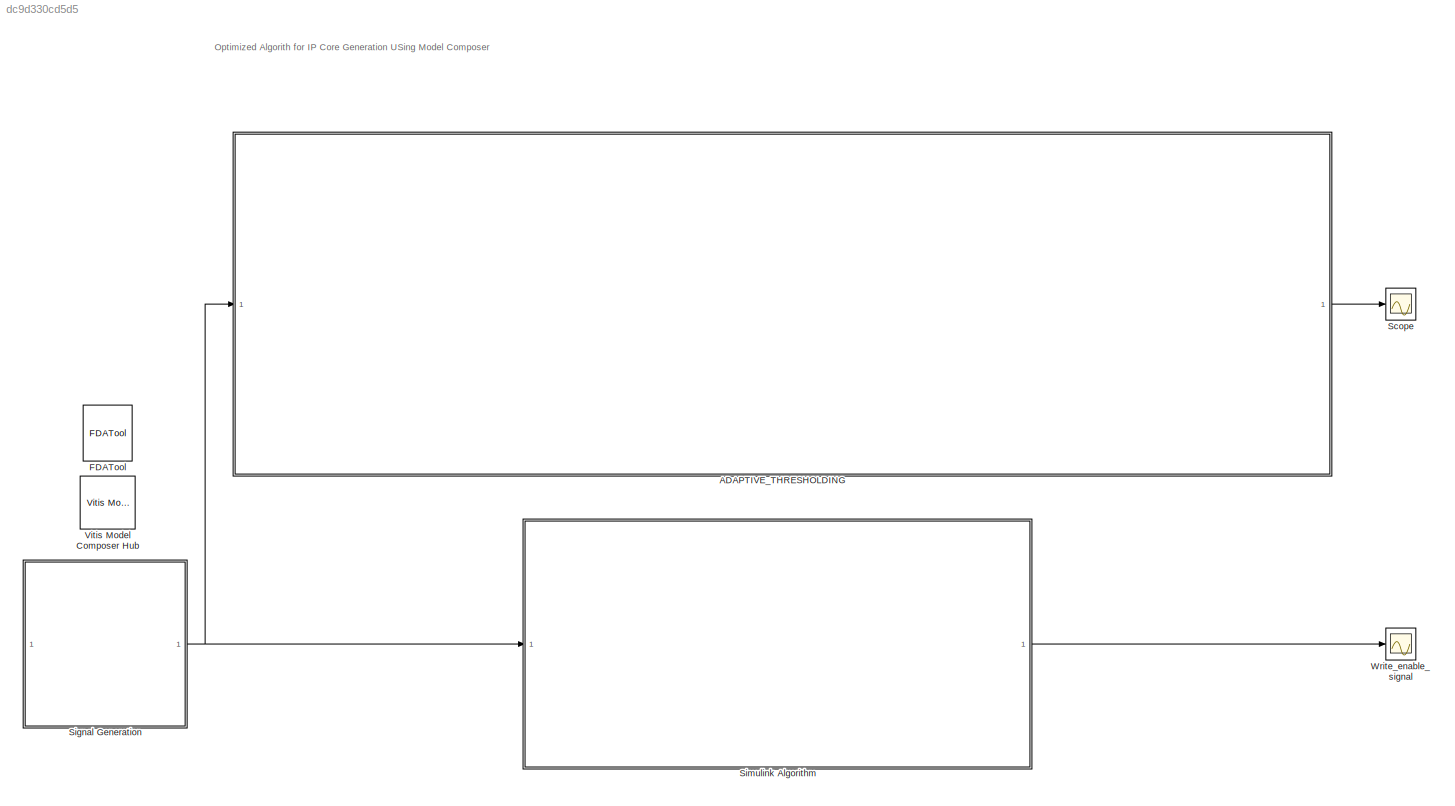
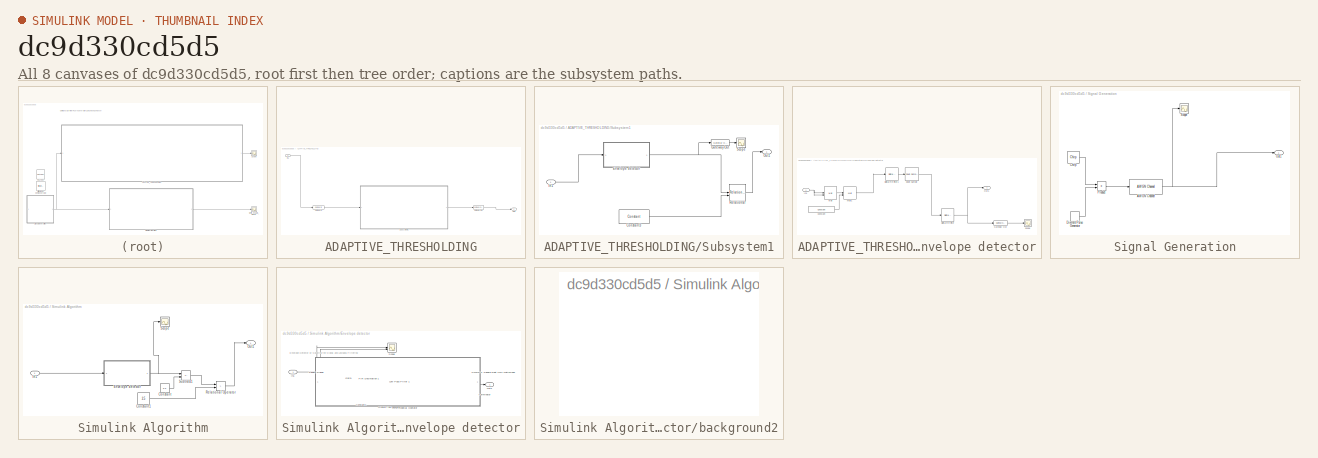
[diagram: thumbnail index - all 8 canvases of the model, root first then tree order]
MODEL slx_dc9d330cd5d5
KIND model
CONFIG AbsTol = auto
CONFIG EnableMultiTasking = off
CONFIG FixedStep = auto
CONFIG MaxStep = auto
CONFIG MinStep = auto
CONFIG RelTol = 1e-3
CONFIG SampleTimeConstraint = Unconstrained
CONFIG SolverName = VariableStepAuto
CONFIG StartTime = 0.0
CONFIG StopTime = 10.0
BLOCK [SubSystem] ADAPTIVE_THRESHOLDING
BLOCK [Reference] ADAPTIVE_THRESHOLDING/Gateway In  REF=hdlBasic/Gateway In
  SourceBlock = hdlBasic/Gateway In
  SourceType = Gateway In Block
BLOCK [Reference] ADAPTIVE_THRESHOLDING/Gateway Out  REF=hdlBasic/Gateway Out
  SourceBlock = hdlBasic/Gateway Out
  SourceType = Gateway Out Block
BLOCK [Inport] ADAPTIVE_THRESHOLDING/In1
BLOCK [Outport] ADAPTIVE_THRESHOLDING/Out1
BLOCK [SubSystem] ADAPTIVE_THRESHOLDING/Subsystem1
BLOCK [Reference] ADAPTIVE_THRESHOLDING/Subsystem1/Constant3  REF=hdlBasic/Constant
  SourceBlock = hdlBasic/Constant
  SourceType = Constant Block Block
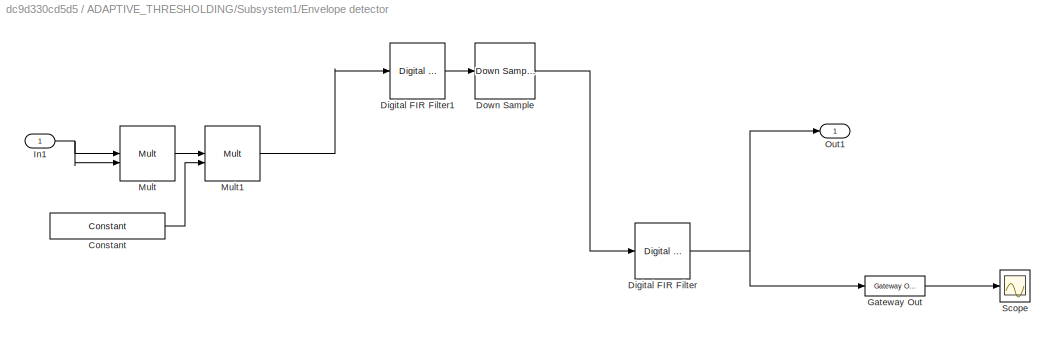
BLOCK [SubSystem] ADAPTIVE_THRESHOLDING/Subsystem1/Envelope detector
BLOCK [Reference] ADAPTIVE_THRESHOLDING/Subsystem1/Envelope detector/Constant  REF=hdlBasic/Constant
  SourceBlock = hdlBasic/Constant
  SourceType = Constant Block Block
BLOCK [Reference] ADAPTIVE_THRESHOLDING/Subsystem1/Envelope detector/Digital FIR Filter  REF=hdlBasic/Digital FIR Filter
  SourceBlock = hdlBasic/Digital FIR Filter
  SourceType = FIR Block
BLOCK [Reference] ADAPTIVE_THRESHOLDING/Subsystem1/Envelope detector/Digital FIR Filter1  REF=hdlBasic/Digital FIR Filter
  SourceBlock = hdlBasic/Digital FIR Filter
  SourceType = FIR Block
BLOCK [Reference] ADAPTIVE_THRESHOLDING/Subsystem1/Envelope detector/Down Sample  REF=hdlBasic/Down Sample
  SourceBlock = hdlBasic/Down Sample
  SourceType = Down Sampler Block
BLOCK [Reference] ADAPTIVE_THRESHOLDING/Subsystem1/Envelope detector/Gateway Out  REF=hdlBasic/Gateway Out
  SourceBlock = hdlBasic/Gateway Out
  SourceType = Gateway Out Block
BLOCK [Inport] ADAPTIVE_THRESHOLDING/Subsystem1/Envelope detector/In1
BLOCK [Reference] ADAPTIVE_THRESHOLDING/Subsystem1/Envelope detector/Mult  REF=hdlBasic/Mult
  SourceBlock = hdlBasic/Mult
  SourceType = Multiplier Block
BLOCK [Reference] ADAPTIVE_THRESHOLDING/Subsystem1/Envelope detector/Mult1  REF=hdlBasic/Mult
  SourceBlock = hdlBasic/Mult
  SourceType = Multiplier Block
BLOCK [Outport] ADAPTIVE_THRESHOLDING/Subsystem1/Envelope detector/Out1
BLOCK [Scope] ADAPTIVE_THRESHOLDING/Subsystem1/Envelope detector/Scope
  Floating = off
  NumInputPorts = 1
  ScopeSpecificationString = Simulink.scopes.TimeScopeBlockCfg('CurrentConfiguration', extmgr.ConfigurationSet(extmgr.Configuration('Core','General UI',true),extmgr.Configuration('Core','Source UI',true),extmgr.Configuration('Sources','WiredSimulink',true,'DataLoggingVariableName','ScopeData2'),extmgr.Configuration('Visuals','Time Domain',true,'SerializedDisplays',{struct('MinYLimReal','-0.59264','MaxYLimReal','5.33372','YLab...<+1531ch>
BLOCK [Reference] ADAPTIVE_THRESHOLDING/Subsystem1/Gateway Out  REF=hdlBasic/Gateway Out
  SourceBlock = hdlBasic/Gateway Out
  SourceType = Gateway Out Block
BLOCK [Inport] ADAPTIVE_THRESHOLDING/Subsystem1/In1
BLOCK [Outport] ADAPTIVE_THRESHOLDING/Subsystem1/Out1
BLOCK [Reference] ADAPTIVE_THRESHOLDING/Subsystem1/Relational  REF=hdlBasic/Relational
  SourceBlock = hdlBasic/Relational
  SourceType = Arithmetic Relational Operator Block
BLOCK [Scope] ADAPTIVE_THRESHOLDING/Subsystem1/Scope
  Floating = off
  NumInputPorts = 1
  ScopeSpecificationString = Simulink.scopes.TimeScopeBlockCfg('CurrentConfiguration', extmgr.ConfigurationSet(extmgr.Configuration('Core','General UI',true),extmgr.Configuration('Core','Source UI',true),extmgr.Configuration('Sources','WiredSimulink',true,'DataLoggingVariableName','ScopeData1'),extmgr.Configuration('Visuals','Time Domain',true,'SerializedDisplays',{struct('MinYLimReal','2.0116','MaxYLimReal','2.66839','YLabel...<+1527ch>
BLOCK [Reference] FDATool  REF=hdlUtilities/FDATool
  SourceBlock = hdlUtilities/FDATool
  SourceType = Xilinx FDATool Interface Block
  UserDataPersistent = on
BLOCK [Scope] Scope
  Floating = off
  NumInputPorts = 1
  ScopeSpecificationString = Simulink.scopes.TimeScopeBlockCfg('CurrentConfiguration', extmgr.ConfigurationSet(extmgr.Configuration('Core','General UI',true),extmgr.Configuration('Core','Source UI',true),extmgr.Configuration('Sources','WiredSimulink',true,'DataLoggingVariableName','ScopeData1'),extmgr.Configuration('Visuals','Time Domain',true,'SerializedDisplays',{struct('MinYLimReal','-0.125','MaxYLimReal','1.125','YLabelRe...<+1555ch>
BLOCK [SubSystem] Signal Generation
BLOCK [Reference] Signal Generation/AWGN Channel  REF=commchan3/AWGN
Channel
  SourceBlock = commchan3/AWGN\nChannel
  SourceType = AWGN Channel
BLOCK [Reference] Signal Generation/Chirp  REF=dspsrcs4/Chirp
  SourceBlock = dspsrcs4/Chirp
  SourceType = Chirp
BLOCK [DiscretePulseGenerator] Signal Generation/Discrete Pulse Generator
  Period = 1*(60e4)
  PhaseDelay = 1*(60e4)
  PulseWidth = 100e-3*(60e4)
  SampleTime = 1/60e4
BLOCK [Outport] Signal Generation/Out1
BLOCK [Product] Signal Generation/Product
BLOCK [Scope] Signal Generation/Scope
  Floating = off
  NumInputPorts = 1
  ScopeSpecificationString = Simulink.scopes.TimeScopeBlockCfg('CurrentConfiguration', extmgr.ConfigurationSet(extmgr.Configuration('Core','General UI',true),extmgr.Configuration('Core','Source UI',true),extmgr.Configuration('Sources','WiredSimulink',true,'DataLoggingVariableName','ScopeData2'),extmgr.Configuration('Visuals','Time Domain',true,'SerializedDisplays',{struct('MinYLimReal','-3.64411','MaxYLimReal','3.61548','YLab...<+1559ch>
BLOCK [SubSystem] Simulink Algorithm
BLOCK [Constant] Simulink Algorithm/Constant
  Value = 0.5
BLOCK [Constant] Simulink Algorithm/Constant1
  SampleTime = -1
  Value = 2.5
  VectorParams1D = off
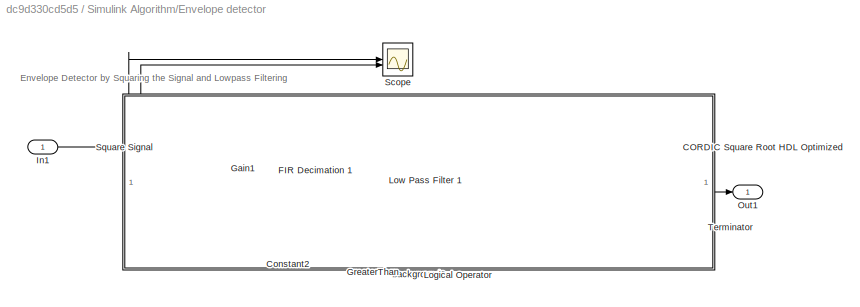
BLOCK [SubSystem] Simulink Algorithm/Envelope detector
BLOCK [Reference] Simulink Algorithm/Envelope detector/CORDIC Square Root HDL Optimized  REF=embmathops/CORDIC Square Root HDL Optimized
  LibrarySourceBlock = embeddedMatrixLib/Math Operations/CORDIC Square Root HDL Optimized
  SourceBlock = embmathops/CORDIC Square Root HDL Optimized
  SourceType = CORDIC Square Root HDL Optimized
BLOCK [Constant] Simulink Algorithm/Envelope detector/Constant2
BLOCK [Reference] Simulink Algorithm/Envelope detector/FIR Decimation 1  REF=dspmlti4/FIR
Decimation
  SourceBlock = dspmlti4/FIR\nDecimation
  SourceType = FIR Decimation
  UserDataPersistent = on
BLOCK [Gain] Simulink Algorithm/Envelope detector/Gain1
  Gain = 4
BLOCK [RelationalOperator] Simulink Algorithm/Envelope detector/GreaterThan
  InputSameDT = off
  Operator = ==
  OutDataTypeStr = boolean
  RndMeth = Simplest
BLOCK [Inport] Simulink Algorithm/Envelope detector/In1
BLOCK [Logic] Simulink Algorithm/Envelope detector/Logical Operator
  AllPortsSameDT = off
  Operator = NOT
  OutDataTypeStr = boolean
BLOCK [DiscreteFir] Simulink Algorithm/Envelope detector/Low Pass Filter 1
  AccumDataTypeStr = Inherit: Same as product output
  Coefficients = firpm(20, [0 0.03 0.1 1], [1 1 0 0])
  InputPortMap = u0
  InputProcessing = Columns as channels (frame based)
  OutputPortMap = o0
  ProductDataTypeStr = Inherit: Same as input
BLOCK [Outport] Simulink Algorithm/Envelope detector/Out1
BLOCK [Scope] Simulink Algorithm/Envelope detector/Scope
  Floating = off
  NumInputPorts = 2
  ScopeSpecificationString = Simulink.scopes.TimeScopeBlockCfg('CurrentConfiguration', extmgr.ConfigurationSet(extmgr.Configuration('Core','General UI',true),extmgr.Configuration('Core','Source UI',true),extmgr.Configuration('Sources','WiredSimulink',true,'DataLoggingVariableName','ScopeData2'),extmgr.Configuration('Visuals','Time Domain',true,'SerializedDisplays',{struct('MinYLimReal','-3.07244','MaxYLimReal','27.65195','YLa...<+1506ch>
BLOCK [Math] Simulink Algorithm/Envelope detector/Square Signal
  Operator = square
  SignedPower = on
BLOCK [Terminator] Simulink Algorithm/Envelope detector/Terminator
BLOCK [SubSystem] Simulink Algorithm/Envelope detector/background2
BLOCK [Inport] Simulink Algorithm/In1
BLOCK [Outport] Simulink Algorithm/Out1
BLOCK [RelationalOperator] Simulink Algorithm/Relational Operator
  InputSameDT = off
  Operator = >
  OutDataTypeStr = boolean
  RndMeth = Zero
BLOCK [Scope] Simulink Algorithm/Scope
  Floating = off
  NumInputPorts = 1
  ScopeSpecificationString = Simulink.scopes.TimeScopeBlockCfg('CurrentConfiguration', extmgr.ConfigurationSet(extmgr.Configuration('Core','General UI',true),extmgr.Configuration('Core','Source UI',true),extmgr.Configuration('Sources','WiredSimulink',true,'DataLoggingVariableName','ScopeData1'),extmgr.Configuration('Visuals','Time Domain',true,'SerializedDisplays',{struct('MinYLimReal','-10.00000','MaxYLimReal','10.00000','YL...<+1546ch>
BLOCK [Sum] Simulink Algorithm/Subtract1
  IconShape = rectangular
  Inputs = +-
BLOCK [Reference] Vitis Model Composer Hub  REF=vmcUtilities/Vitis Model Composer Hub
  SourceBlock = vmcUtilities/Vitis Model Composer Hub
  SourceType = VMC Hub
  Tag = genX
  UserDataPersistent = on
BLOCK [Scope] Write_enable_signal
  Floating = off
  NumInputPorts = 1
  ScopeSpecificationString = Simulink.scopes.TimeScopeBlockCfg('CurrentConfiguration', extmgr.ConfigurationSet(extmgr.Configuration('Core','General UI',true),extmgr.Configuration('Core','Source UI',true),extmgr.Configuration('Sources','WiredSimulink',true,'DataLoggingVariableName','ScopeData1'),extmgr.Configuration('Visuals','Time Domain',true,'SerializedDisplays',{struct('MinYLimReal','-0.125','MaxYLimReal','1.125','YLabelRe...<+1518ch>
ANNOTATION (root): Optimized Algorith for IP Core Generation USing Model Composer
ANNOTATION Simulink Algorithm/Envelope detector: Envelope Detector by Squaring the Signal and Lowpass Filtering
LINE ADAPTIVE_THRESHOLDING/Gateway In:1 -> ADAPTIVE_THRESHOLDING/Subsystem1:1
LINE ADAPTIVE_THRESHOLDING/Gateway Out:1 -> ADAPTIVE_THRESHOLDING/Out1:1
LINE ADAPTIVE_THRESHOLDING/In1:1 -> ADAPTIVE_THRESHOLDING/Gateway In:1
LINE ADAPTIVE_THRESHOLDING/Subsystem1/Constant3:1 -> ADAPTIVE_THRESHOLDING/Subsystem1/Relational:2
LINE ADAPTIVE_THRESHOLDING/Subsystem1/Envelope detector/Constant:1 -> ADAPTIVE_THRESHOLDING/Subsystem1/Envelope detector/Mult1:2
LINE ADAPTIVE_THRESHOLDING/Subsystem1/Envelope detector/Digital FIR Filter1:1 -> ADAPTIVE_THRESHOLDING/Subsystem1/Envelope detector/Down Sample:1
NET ADAPTIVE_THRESHOLDING/Subsystem1/Envelope detector/Digital FIR Filter:1 -> ADAPTIVE_THRESHOLDING/Subsystem1/Envelope detector/Gateway Out:1, ADAPTIVE_THRESHOLDING/Subsystem1/Envelope detector/Out1:1
LINE ADAPTIVE_THRESHOLDING/Subsystem1/Envelope detector/Down Sample:1 -> ADAPTIVE_THRESHOLDING/Subsystem1/Envelope detector/Digital FIR Filter:1
LINE ADAPTIVE_THRESHOLDING/Subsystem1/Envelope detector/Gateway Out:1 -> ADAPTIVE_THRESHOLDING/Subsystem1/Envelope detector/Scope:1
NET ADAPTIVE_THRESHOLDING/Subsystem1/Envelope detector/In1:1 -> ADAPTIVE_THRESHOLDING/Subsystem1/Envelope detector/Mult:1, ADAPTIVE_THRESHOLDING/Subsystem1/Envelope detector/Mult:2
LINE ADAPTIVE_THRESHOLDING/Subsystem1/Envelope detector/Mult1:1 -> ADAPTIVE_THRESHOLDING/Subsystem1/Envelope detector/Digital FIR Filter1:1
LINE ADAPTIVE_THRESHOLDING/Subsystem1/Envelope detector/Mult:1 -> ADAPTIVE_THRESHOLDING/Subsystem1/Envelope detector/Mult1:1
NET ADAPTIVE_THRESHOLDING/Subsystem1/Envelope detector:1 -> ADAPTIVE_THRESHOLDING/Subsystem1/Gateway Out:1, ADAPTIVE_THRESHOLDING/Subsystem1/Relational:1
LINE ADAPTIVE_THRESHOLDING/Subsystem1/Gateway Out:1 -> ADAPTIVE_THRESHOLDING/Subsystem1/Scope:1
LINE ADAPTIVE_THRESHOLDING/Subsystem1/In1:1 -> ADAPTIVE_THRESHOLDING/Subsystem1/Envelope detector:1
LINE ADAPTIVE_THRESHOLDING/Subsystem1/Relational:1 -> ADAPTIVE_THRESHOLDING/Subsystem1/Out1:1
LINE ADAPTIVE_THRESHOLDING/Subsystem1:1 -> ADAPTIVE_THRESHOLDING/Gateway Out:1
LINE ADAPTIVE_THRESHOLDING:1 -> Scope:1
NET Signal Generation/AWGN Channel:1 -> Signal Generation/Out1:1, Signal Generation/Scope:1
LINE Signal Generation/Chirp:1 -> Signal Generation/Product:1
LINE Signal Generation/Discrete Pulse Generator:1 -> Signal Generation/Product:2
LINE Signal Generation/Product:1 -> Signal Generation/AWGN Channel:1
NET Signal Generation:1 -> ADAPTIVE_THRESHOLDING:1, Simulink Algorithm:1
LINE Simulink Algorithm/Constant1:1 -> Simulink Algorithm/Relational Operator:2
LINE Simulink Algorithm/Constant:1 -> Simulink Algorithm/Subtract1:2
LINE Simulink Algorithm/Envelope detector/CORDIC Square Root HDL Optimized:1 -> Simulink Algorithm/Envelope detector/Out1:1
LINE Simulink Algorithm/Envelope detector/CORDIC Square Root HDL Optimized:2 -> Simulink Algorithm/Envelope detector/Terminator:1
NET Simulink Algorithm/Envelope detector/Constant2:1 -> Simulink Algorithm/Envelope detector/GreaterThan:1, Simulink Algorithm/Envelope detector/GreaterThan:2
NET Simulink Algorithm/Envelope detector/FIR Decimation 1:1 -> Simulink Algorithm/Envelope detector/Low Pass Filter 1:1, Simulink Algorithm/Envelope detector/Scope:1
NET Simulink Algorithm/Envelope detector/Gain1:1 -> Simulink Algorithm/Envelope detector/FIR Decimation 1:1, Simulink Algorithm/Envelope detector/Scope:2
NET Simulink Algorithm/Envelope detector/GreaterThan:1 -> Simulink Algorithm/Envelope detector/CORDIC Square Root HDL Optimized:2, Simulink Algorithm/Envelope detector/Logical Operator:1
LINE Simulink Algorithm/Envelope detector/In1:1 -> Simulink Algorithm/Envelope detector/Square Signal:1
LINE Simulink Algorithm/Envelope detector/Logical Operator:1 -> Simulink Algorithm/Envelope detector/CORDIC Square Root HDL Optimized:3
LINE Simulink Algorithm/Envelope detector/Low Pass Filter 1:1 -> Simulink Algorithm/Envelope detector/CORDIC Square Root HDL Optimized:1
LINE Simulink Algorithm/Envelope detector/Square Signal:1 -> Simulink Algorithm/Envelope detector/Gain1:1
NET Simulink Algorithm/Envelope detector:1 -> Simulink Algorithm/Scope:1, Simulink Algorithm/Subtract1:1
LINE Simulink Algorithm/In1:1 -> Simulink Algorithm/Envelope detector:1
LINE Simulink Algorithm/Relational Operator:1 -> Simulink Algorithm/Out1:1
LINE Simulink Algorithm/Subtract1:1 -> Simulink Algorithm/Relational Operator:1
LINE Simulink Algorithm:1 -> Write_enable_signal:1
note: NET lines group one-source signal fan-out (src -> all destinations, sorted); 1:1 wires keep LINE
